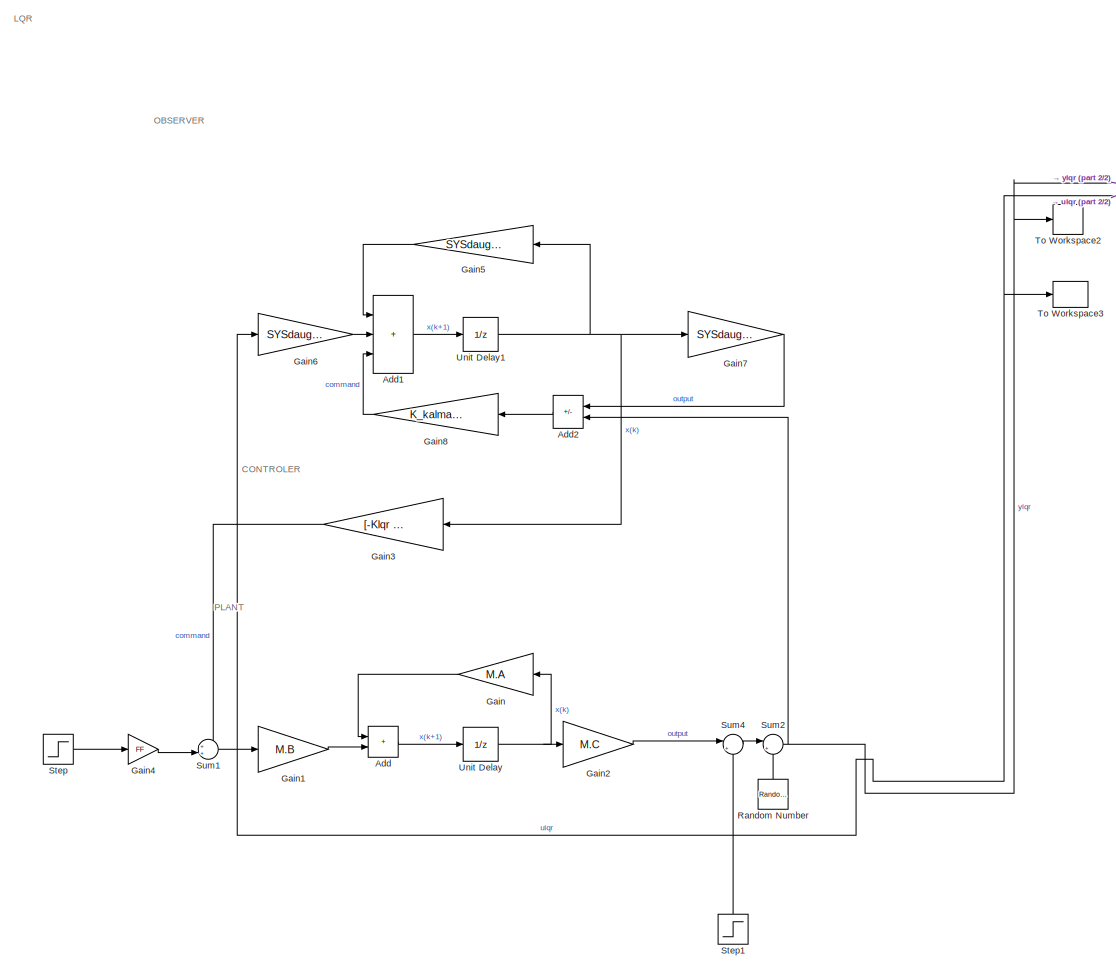
[diagram: root canvas - part 1/2, left side, full height]
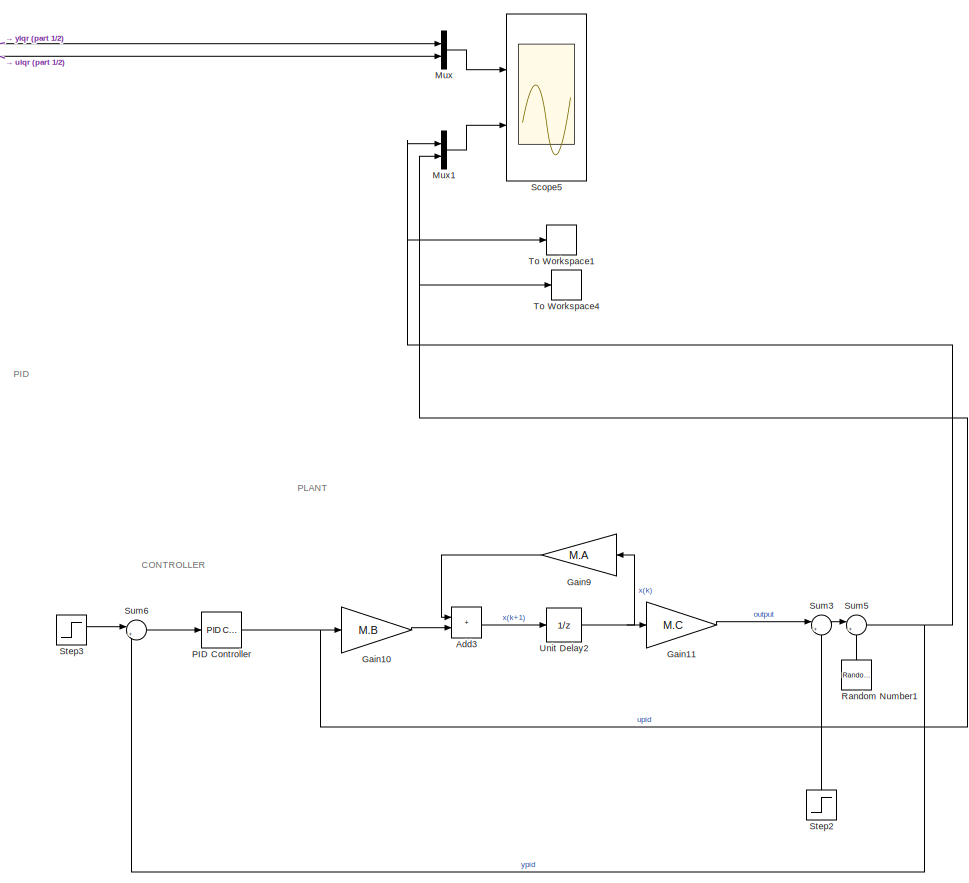
[diagram: root canvas - part 2/2, right side, full height]
MODEL slx_77fe7fab2a3d
KIND model
CONFIG AbsTol = auto
CONFIG EnableMultiTasking = off
CONFIG FixedStep = auto
CONFIG MaxStep = auto
CONFIG MinStep = auto
CONFIG RelTol = 1e-3
CONFIG SampleTimeConstraint = Unconstrained
CONFIG SolverName = VariableStepAuto
CONFIG StartTime = 0.0
CONFIG StopTime = 4500
BLOCK [Sum] Add
  IconShape = rectangular
  Ports = [2, 1]
BLOCK [Sum] Add1
  IconShape = rectangular
  Inputs = +++
  Ports = [3, 1]
BLOCK [Sum] Add2
  IconShape = rectangular
  Inputs = -+
  NameLocation = top
  Ports = [2, 1]
BLOCK [Sum] Add3
  IconShape = rectangular
  Ports = [2, 1]
BLOCK [Gain] Gain
  Gain = M.A
  Multiplication = Matrix(K*u)
  NameLocation = top
BLOCK [Gain] Gain1
  Gain = M.B
  Multiplication = Matrix(K*u)
BLOCK [Gain] Gain10
  Gain = M.B
  Multiplication = Matrix(K*u)
BLOCK [Gain] Gain11
  Gain = M.C
  Multiplication = Matrix(K*u)
BLOCK [Gain] Gain2
  Gain = M.C
  Multiplication = Matrix(K*u)
BLOCK [Gain] Gain3
  Gain = [-Klqr -FF]
  Multiplication = Matrix(K*u)
  NameLocation = top
BLOCK [Gain] Gain4
  Gain = FF
BLOCK [Gain] Gain5
  Gain = SYSdaug.A
  Multiplication = Matrix(K*u)
  NameLocation = top
BLOCK [Gain] Gain6
  Gain = SYSdaug.B
  Multiplication = Matrix(K*u)
BLOCK [Gain] Gain7
  Gain = SYSdaug.C
  Multiplication = Matrix(K*u)
BLOCK [Gain] Gain8
  Gain = K_kalman_aug'
  Multiplication = Matrix(K*u)
  NameLocation = top
BLOCK [Gain] Gain9
  Gain = M.A
  Multiplication = Matrix(K*u)
  NameLocation = top
BLOCK [Mux] Mux
  DisplayOption = bar
  Inputs = 2
  Ports = [2, 1]
BLOCK [Mux] Mux1
  DisplayOption = bar
  Inputs = 2
  Ports = [2, 1]
BLOCK [Reference] PID Controller  REF=pid_lib/PID Controller
  Ports = [1, 1]
  SourceBlock = pid_lib/PID Controller
  SourceProductBaseCode = SL
  SourceType = PID 1dof
BLOCK [RandomNumber] Random Number
  NameLocation = right
  SampleTime = 5
  Variance = 0.001
BLOCK [RandomNumber] Random Number1
  NameLocation = right
  SampleTime = 5
  Variance = 0.001
BLOCK [Scope] Scope5
  Floating = off
  NumInputPorts = 2
  Ports = [2]
  ScopeSpecificationString = Simulink.scopes.TimeScopeBlockCfg('CurrentConfiguration', extmgr.ConfigurationSet(extmgr.Configuration('Core','General UI',true),extmgr.Configuration('Core','Source UI',true),extmgr.Configuration('Sources','WiredSimulink',true,'DataLoggingVariableName','ScopeData5'),extmgr.Configuration('Visuals','Time Domain',true,'PlotType','Stairs','SerializedDisplays',{struct('MinYLimReal','-1.03737','MaxYLimR...<+2153ch>
BLOCK [Step] Step
  After = 3.6
  SampleTime = 0
  Time = 0
BLOCK [Step] Step1
  After = 0.36
  NameLocation = right
  SampleTime = 0
  Time = 50*Ts
BLOCK [Step] Step2
  After = 0.36
  NameLocation = right
  SampleTime = 0
  Time = 50*Ts
BLOCK [Step] Step3
  After = 3.6
  SampleTime = 0
  Time = 0
BLOCK [Sum] Sum1
  Inputs = ++|
  Ports = [2, 1]
BLOCK [Sum] Sum2
  Inputs = |++
  Ports = [2, 1]
BLOCK [Sum] Sum3
  Inputs = |++
  Ports = [2, 1]
BLOCK [Sum] Sum4
  Inputs = |++
  Ports = [2, 1]
BLOCK [Sum] Sum5
  Inputs = |++
  Ports = [2, 1]
BLOCK [Sum] Sum6
  Inputs = |+-
  Ports = [2, 1]
BLOCK [ToWorkspace] To Workspace1
  FixptAsFi = on
  MaxDataPoints = inf
  Ports = [1]
  SampleTime = -1
  SaveFormat = Timeseries
  VariableName = ypid
BLOCK [ToWorkspace] To Workspace2
  FixptAsFi = on
  MaxDataPoints = inf
  Ports = [1]
  SampleTime = -1
  SaveFormat = Timeseries
  VariableName = ylqr
BLOCK [ToWorkspace] To Workspace3
  FixptAsFi = on
  MaxDataPoints = inf
  Ports = [1]
  SampleTime = -1
  SaveFormat = Timeseries
  VariableName = ulqr
BLOCK [ToWorkspace] To Workspace4
  FixptAsFi = on
  MaxDataPoints = inf
  Ports = [1]
  SampleTime = -1
  SaveFormat = Timeseries
  VariableName = upid
BLOCK [UnitDelay] Unit Delay
  HasFrameUpgradeWarning = on
  SampleTime = Ts
BLOCK [UnitDelay] Unit Delay1
  HasFrameUpgradeWarning = on
  SampleTime = Ts
BLOCK [UnitDelay] Unit Delay2
  HasFrameUpgradeWarning = on
  SampleTime = Ts
ANNOTATION (root): CONTROLER
ANNOTATION (root): CONTROLLER
ANNOTATION (root): LQR
ANNOTATION (root): OBSERVER
ANNOTATION (root): PID
ANNOTATION (root): PLANT
LINE Add1:1 -> Unit Delay1:1
LINE Add2:1 -> Gain8:1
LINE Add3:1 -> Unit Delay2:1
LINE Add:1 -> Unit Delay:1
LINE Gain10:1 -> Add3:2
LINE Gain11:1 -> Sum3:1
LINE Gain1:1 -> Add:2
LINE Gain2:1 -> Sum4:1
LINE Gain3:1 -> Sum1:1
LINE Gain4:1 -> Sum1:2
LINE Gain5:1 -> Add1:1
LINE Gain6:1 -> Add1:2
LINE Gain7:1 -> Add2:1
LINE Gain8:1 -> Add1:3
LINE Gain9:1 -> Add3:1
LINE Gain:1 -> Add:1
LINE Mux1:1 -> Scope5:2
LINE Mux:1 -> Scope5:1
NET PID Controller:1 -> Gain10:1, Mux1:2, To Workspace4:1
LINE Random Number1:1 -> Sum5:2
LINE Random Number:1 -> Sum2:2
LINE Step1:1 -> Sum4:2
LINE Step2:1 -> Sum3:2
LINE Step3:1 -> Sum6:1
LINE Step:1 -> Gain4:1
NET Sum1:1 -> Gain1:1, Gain6:1, Mux:2, To Workspace3:1
NET Sum2:1 -> Add2:2, Mux:1, To Workspace2:1
LINE Sum3:1 -> Sum5:1
LINE Sum4:1 -> Sum2:1
NET Sum5:1 -> Mux1:1, Sum6:2, To Workspace1:1
LINE Sum6:1 -> PID Controller:1
NET Unit Delay1:1 -> Gain3:1, Gain5:1, Gain7:1
NET Unit Delay2:1 -> Gain11:1, Gain9:1
NET Unit Delay:1 -> Gain2:1, Gain:1
note: NET lines group one-source signal fan-out (src -> all destinations, sorted); 1:1 wires keep LINE
